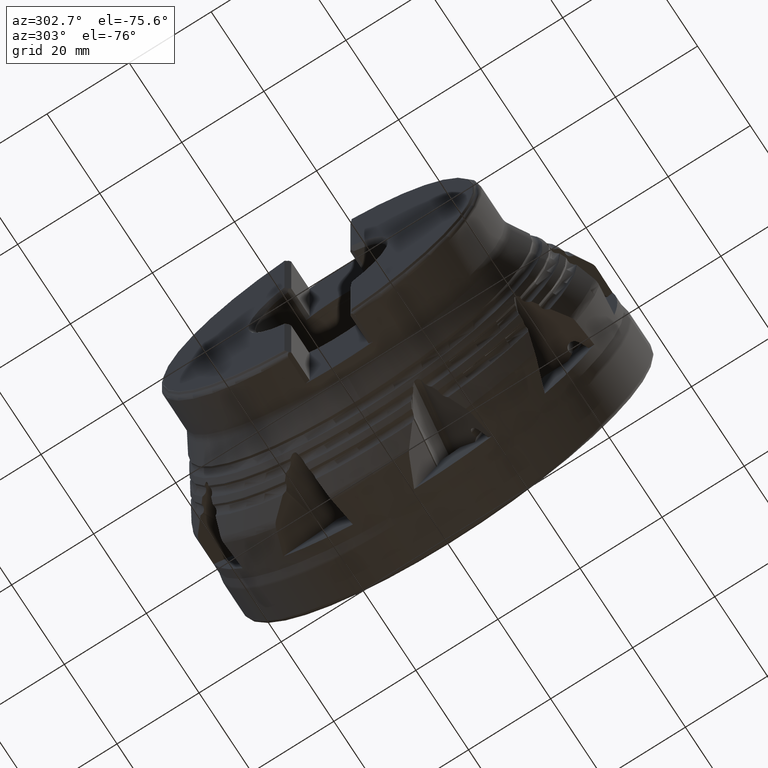
[diagram: clean part render]
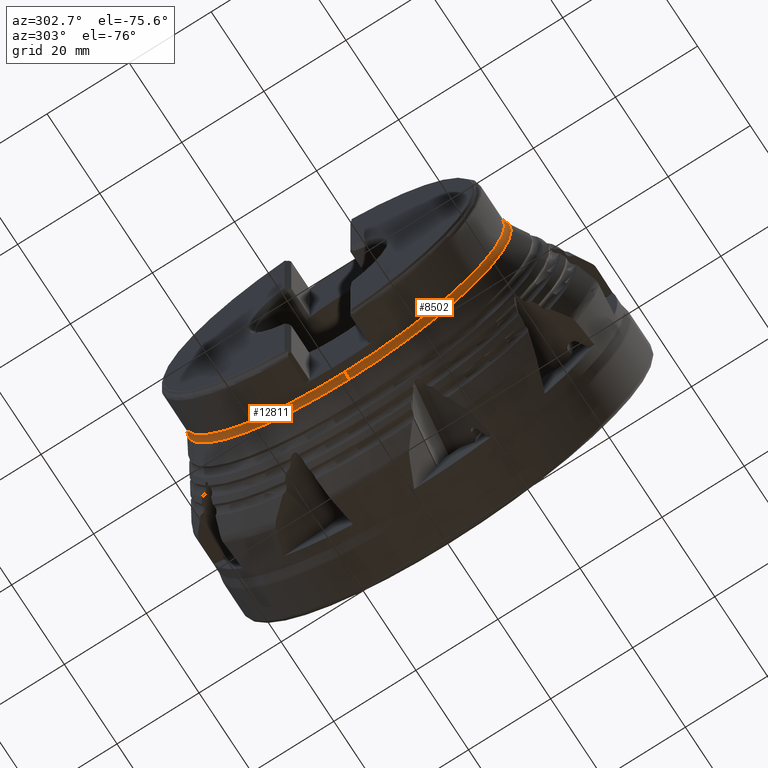
[diagram: same view with one multi-face feature highlighted, each face labeled with its STEP entity id]
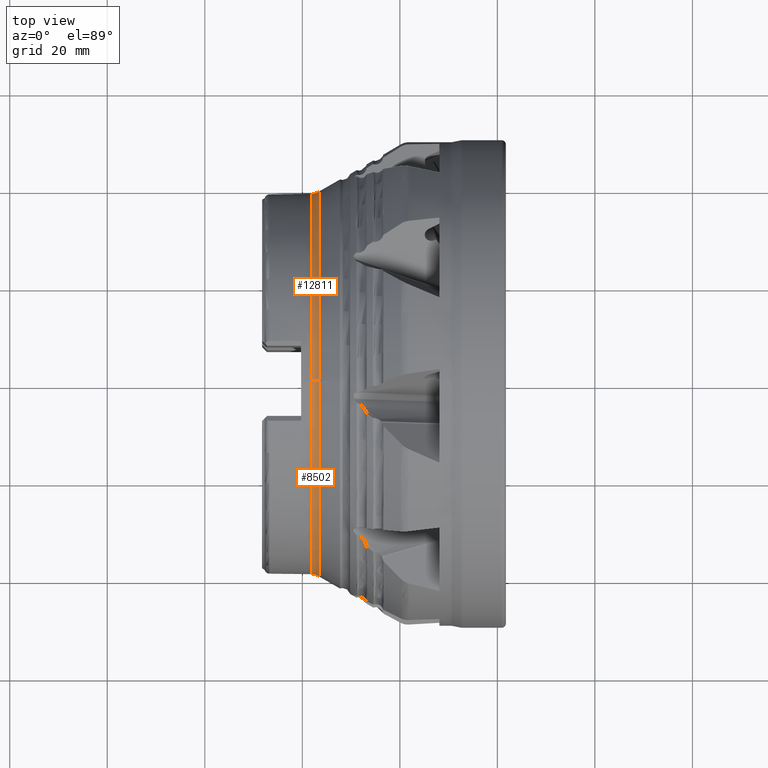
[diagram: same view with one multi-face feature highlighted, each face labeled with its STEP entity id]
A machine part, auxiliary view. The highlighted faces form ONE feature: a constant-radius fillet chain: 2 tangent blend faces with common blend radius 3 mm. The faces share edges in the B-rep.
A second angle (top view) of the same feature is appended — it is thin or edge-on in the first view.
Their STEP definitions:
[1] entity #12811 (Torus):
#5935 = FACE_OUTER_BOUND ( 'NONE', #14026, .T. ) ;
#5940 = TOROIDAL_SURFACE ( 'NONE', #22682, 41.99999999999999300, 3.000000000000001800 ) ;
#6851 = DIRECTION ( 'NONE',  ( 1.000000000000000000, -0.0000000000000000000, -0.0000000000000000000 ) ) ;
#6852 = CARTESIAN_POINT ( 'NONE',  ( -38.18412580999999800, 0.0000000000000000000, 0.0000000000000000000 ) ) ;
#6854 = DIRECTION ( 'NONE',  ( 0.0000000000000000000, 0.0000000000000000000, -1.000000000000000000 ) ) ;
#7458 = CARTESIAN_POINT ( 'NONE',  ( -38.18412580999999800, 0.0000000000000000000, -38.99999999999999300 ) ) ;
#7473 = CARTESIAN_POINT ( 'NONE',  ( -38.18412580999999800, 4.808594715995145100E-015, 38.99999999999999300 ) ) ;
#7505 = CARTESIAN_POINT ( 'NONE',  ( -36.48100000000001600, 4.987102385715392400E-015, 39.53031125942722900 ) ) ;
#7585 = CARTESIAN_POINT ( 'NONE',  ( -36.48100000000001600, 0.0000000000000000000, -39.53031125942722900 ) ) ;
#9041 = EDGE_CURVE ( 'NONE', #14466, #14481, #15655, .T. ) ;
#9052 = EDGE_CURVE ( 'NONE', #14513, #14481, #15668, .T. ) ;
#9054 = EDGE_CURVE ( 'NONE', #14593, #14466, #15671, .T. ) ;
#9057 = EDGE_CURVE ( 'NONE', #14593, #14513, #15675, .T. ) ;
#10987 = AXIS2_PLACEMENT_3D ( 'NONE', #19176, #19179, #19180 ) ;
#10991 = AXIS2_PLACEMENT_3D ( 'NONE', #19199, #19218, #19219 ) ;
#10994 = AXIS2_PLACEMENT_3D ( 'NONE', #19223, #19224, #19225 ) ;
#10995 = AXIS2_PLACEMENT_3D ( 'NONE', #19231, #19232, #19233 ) ;
#12811 = ADVANCED_FACE ( 'NONE', ( #5935 ), #5940, .F. ) ;
#13172 = ORIENTED_EDGE ( 'NONE', *, *, #9052, .F. ) ;
#13173 = ORIENTED_EDGE ( 'NONE', *, *, #9057, .F. ) ;
#13174 = ORIENTED_EDGE ( 'NONE', *, *, #9054, .T. ) ;
#13175 = ORIENTED_EDGE ( 'NONE', *, *, #9041, .T. ) ;
#14026 = EDGE_LOOP ( 'NONE', ( #13172, #13173, #13174, #13175 ) ) ;
#14466 = VERTEX_POINT ( 'NONE', #7458 ) ;
#14481 = VERTEX_POINT ( 'NONE', #7473 ) ;
#14513 = VERTEX_POINT ( 'NONE', #7505 ) ;
#14593 = VERTEX_POINT ( 'NONE', #7585 ) ;
#15655 = CIRCLE ( 'NONE', #10987, 38.99999999999999300 ) ;
#15668 = CIRCLE ( 'NONE', #10991, 3.000000000000002700 ) ;
#15671 = CIRCLE ( 'NONE', #10994, 3.000000000000002700 ) ;
#15675 = CIRCLE ( 'NONE', #10995, 39.53031125942722900 ) ;
#19176 = CARTESIAN_POINT ( 'NONE',  ( -38.18412580999999800, 0.0000000000000000000, 0.0000000000000000000 ) ) ;
#19179 = DIRECTION ( 'NONE',  ( 1.000000000000000000, -0.0000000000000000000, -0.0000000000000000000 ) ) ;
#19180 = DIRECTION ( 'NONE',  ( 0.0000000000000000000, 0.0000000000000000000, -1.000000000000000000 ) ) ;
#19199 = CARTESIAN_POINT ( 'NONE',  ( -38.18412580999999800, 5.143516556418882500E-015, 41.99999999999999300 ) ) ;
#19218 = DIRECTION ( 'NONE',  ( 0.0000000000000000000, 1.000000000000000000, -1.224646799147353200E-016 ) ) ;
#19219 = DIRECTION ( 'NONE',  ( 0.0000000000000000000, 1.224646799147352000E-016, 1.000000000000000000 ) ) ;
#19223 = CARTESIAN_POINT ( 'NONE',  ( -38.18412580999999800, 0.0000000000000000000, -41.99999999999999300 ) ) ;
#19224 = DIRECTION ( 'NONE',  ( -0.0000000000000000000, -1.000000000000000000, -0.0000000000000000000 ) ) ;
#19225 = DIRECTION ( 'NONE',  ( 0.0000000000000000000, 0.0000000000000000000, -1.000000000000000000 ) ) ;
#19231 = CARTESIAN_POINT ( 'NONE',  ( -36.48100000000001600, 0.0000000000000000000, 0.0000000000000000000 ) ) ;
#19232 = DIRECTION ( 'NONE',  ( 1.000000000000000000, -0.0000000000000000000, -0.0000000000000000000 ) ) ;
#19233 = DIRECTION ( 'NONE',  ( 0.0000000000000000000, 0.0000000000000000000, -1.000000000000000000 ) ) ;
#22682 = AXIS2_PLACEMENT_3D ( 'NONE', #6852, #6851, #6854 ) ;
[2] entity #8502 (Torus):
#689 = EDGE_LOOP ( 'NONE', ( #14801, #14803, #14810, #14779 ) ) ;
#7458 = CARTESIAN_POINT ( 'NONE',  ( -38.18412580999999800, 0.0000000000000000000, -38.99999999999999300 ) ) ;
#7473 = CARTESIAN_POINT ( 'NONE',  ( -38.18412580999999800, 4.808594715995145100E-015, 38.99999999999999300 ) ) ;
#7505 = CARTESIAN_POINT ( 'NONE',  ( -36.48100000000001600, 4.987102385715392400E-015, 39.53031125942722900 ) ) ;
#7585 = CARTESIAN_POINT ( 'NONE',  ( -36.48100000000001600, 0.0000000000000000000, -39.53031125942722900 ) ) ;
#8502 = ADVANCED_FACE ( 'NONE', ( #15238 ), #15243, .F. ) ;
#9049 = EDGE_CURVE ( 'NONE', #14481, #14466, #15665, .T. ) ;
#9052 = EDGE_CURVE ( 'NONE', #14513, #14481, #15668, .T. ) ;
#9053 = EDGE_CURVE ( 'NONE', #14513, #14593, #15669, .T. ) ;
#9054 = EDGE_CURVE ( 'NONE', #14593, #14466, #15671, .T. ) ;
#10735 = AXIS2_PLACEMENT_3D ( 'NONE', #17488, #17487, #17490 ) ;
#10991 = AXIS2_PLACEMENT_3D ( 'NONE', #19199, #19218, #19219 ) ;
#10993 = AXIS2_PLACEMENT_3D ( 'NONE', #19191, #19200, #19201 ) ;
#10994 = AXIS2_PLACEMENT_3D ( 'NONE', #19223, #19224, #19225 ) ;
#10996 = AXIS2_PLACEMENT_3D ( 'NONE', #19205, #19221, #19222 ) ;
#14466 = VERTEX_POINT ( 'NONE', #7458 ) ;
#14481 = VERTEX_POINT ( 'NONE', #7473 ) ;
#14513 = VERTEX_POINT ( 'NONE', #7505 ) ;
#14593 = VERTEX_POINT ( 'NONE', #7585 ) ;
#14779 = ORIENTED_EDGE ( 'NONE', *, *, #9054, .F. ) ;
#14801 = ORIENTED_EDGE ( 'NONE', *, *, #9053, .F. ) ;
#14803 = ORIENTED_EDGE ( 'NONE', *, *, #9052, .T. ) ;
#14810 = ORIENTED_EDGE ( 'NONE', *, *, #9049, .T. ) ;
#15238 = FACE_OUTER_BOUND ( 'NONE', #689, .T. ) ;
#15243 = TOROIDAL_SURFACE ( 'NONE', #10735, 41.99999999999999300, 3.000000000000001800 ) ;
#15665 = CIRCLE ( 'NONE', #10993, 38.99999999999999300 ) ;
#15668 = CIRCLE ( 'NONE', #10991, 3.000000000000002700 ) ;
#15669 = CIRCLE ( 'NONE', #10996, 39.53031125942722900 ) ;
#15671 = CIRCLE ( 'NONE', #10994, 3.000000000000002700 ) ;
#17487 = DIRECTION ( 'NONE',  ( 1.000000000000000000, -0.0000000000000000000, -0.0000000000000000000 ) ) ;
#17488 = CARTESIAN_POINT ( 'NONE',  ( -38.18412580999999800, 0.0000000000000000000, 0.0000000000000000000 ) ) ;
#17490 = DIRECTION ( 'NONE',  ( 0.0000000000000000000, 0.0000000000000000000, -1.000000000000000000 ) ) ;
#19191 = CARTESIAN_POINT ( 'NONE',  ( -38.18412580999999800, 0.0000000000000000000, 0.0000000000000000000 ) ) ;
#19199 = CARTESIAN_POINT ( 'NONE',  ( -38.18412580999999800, 5.143516556418882500E-015, 41.99999999999999300 ) ) ;
#19200 = DIRECTION ( 'NONE',  ( 1.000000000000000000, -0.0000000000000000000, -0.0000000000000000000 ) ) ;
#19201 = DIRECTION ( 'NONE',  ( 0.0000000000000000000, 0.0000000000000000000, -1.000000000000000000 ) ) ;
#19205 = CARTESIAN_POINT ( 'NONE',  ( -36.48100000000001600, 0.0000000000000000000, 0.0000000000000000000 ) ) ;
#19218 = DIRECTION ( 'NONE',  ( 0.0000000000000000000, 1.000000000000000000, -1.224646799147353200E-016 ) ) ;
#19219 = DIRECTION ( 'NONE',  ( 0.0000000000000000000, 1.224646799147352000E-016, 1.000000000000000000 ) ) ;
#19221 = DIRECTION ( 'NONE',  ( 1.000000000000000000, -0.0000000000000000000, -0.0000000000000000000 ) ) ;
#19222 = DIRECTION ( 'NONE',  ( 0.0000000000000000000, 0.0000000000000000000, -1.000000000000000000 ) ) ;
#19223 = CARTESIAN_POINT ( 'NONE',  ( -38.18412580999999800, 0.0000000000000000000, -41.99999999999999300 ) ) ;
#19224 = DIRECTION ( 'NONE',  ( -0.0000000000000000000, -1.000000000000000000, -0.0000000000000000000 ) ) ;
#19225 = DIRECTION ( 'NONE',  ( 0.0000000000000000000, 0.0000000000000000000, -1.000000000000000000 ) ) ;